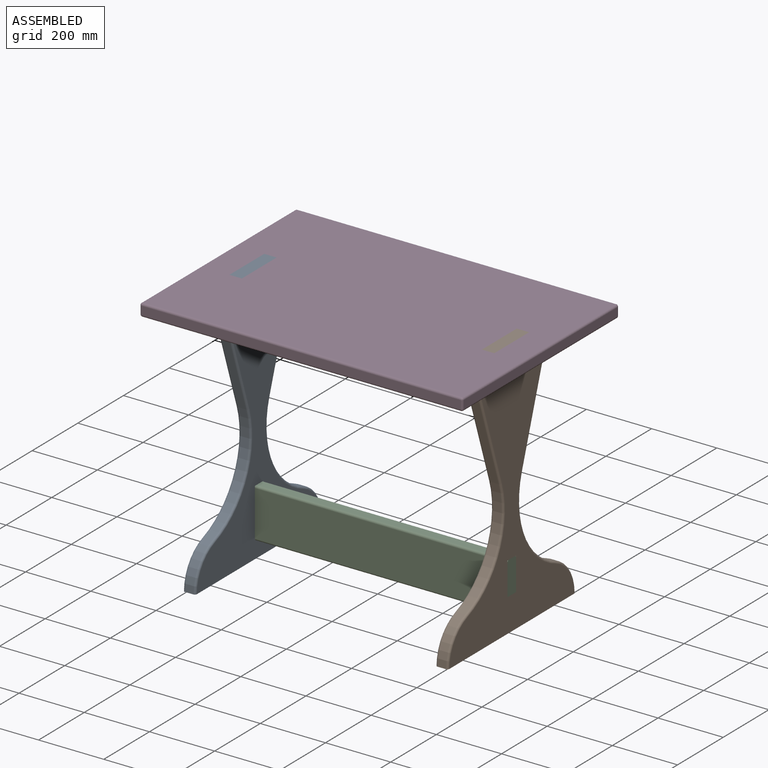
[diagram: assembled view]
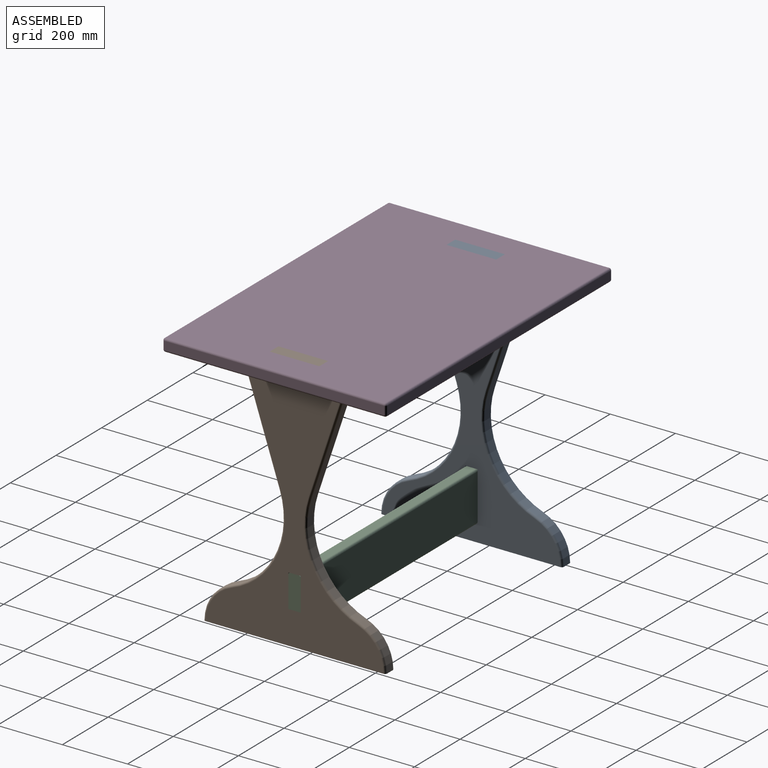
[diagram: assembled view, second angle]
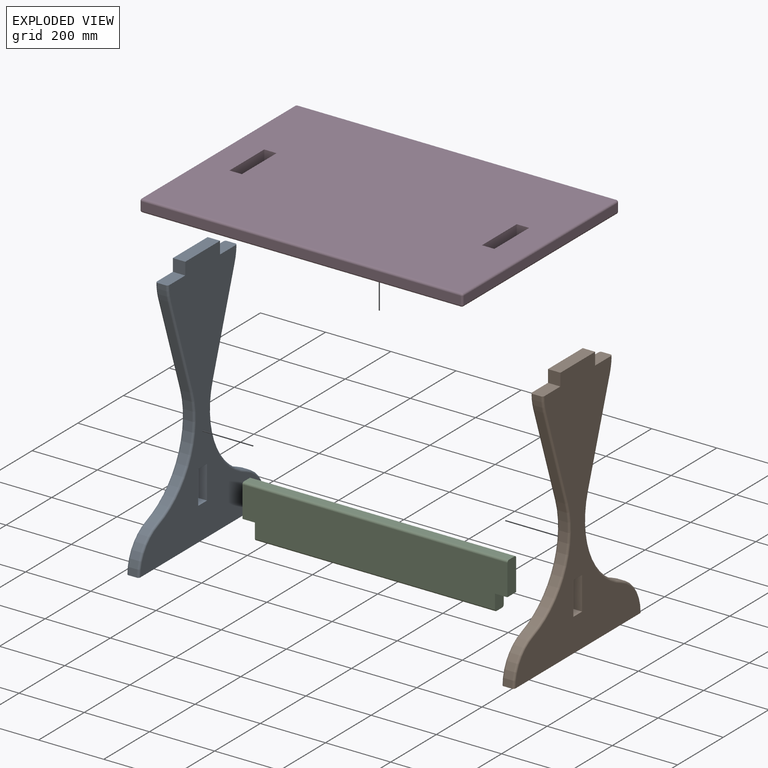
[diagram: exploded view]
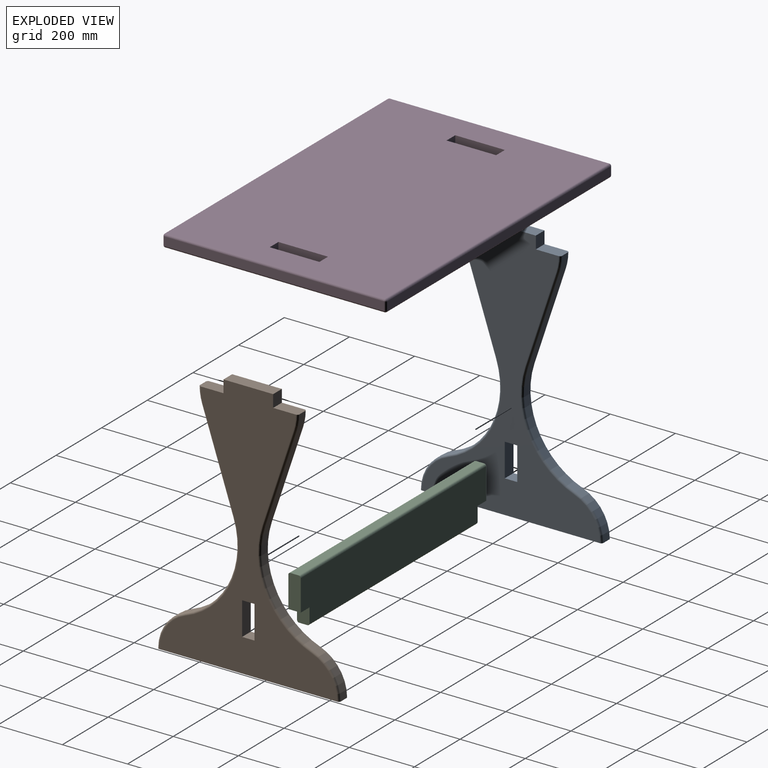
[diagram: exploded view, second angle]
ASSEMBLY  parts=4 mates=9
PART A: 36 faces, bbox 38.1x579.7x800.1 mm
  f0: plane 76.2x38.1mm, normal (0,0,1), area 2885.9mm2, adj f1,f13,f14,f15,f23,f31
  f1: plane 38.1x38.1mm, normal (0,1,0), area 1451.6mm2, adj f0,f2,f14,f15
  f2: plane 152.4x38.1mm, normal (0,0,1), area 5806.4mm2, adj f1,f3,f14,f15
  f3: plane 38.1x38.1mm, normal (0,-1,0), area 1451.6mm2, adj f2,f4,f14,f15
  f4: plane 76.2x38.1mm, normal (0,0,1), area 2885.9mm2, adj f3,f5,f14,f15,f16,f27
  f5: cylinder r=152.4mm len=48.08mm, axis (-1,0,0), area 1242.4mm2, adj f4,f6,f16,f27
  f6: plane 289.24x96.16mm, normal (0,-0.95,-0.32), area 7741.9mm2, adj f5,f7,f17,f26
  f7: cylinder r=243.37mm len=305.39mm, axis (-1,0,0), area 9530.3mm2, adj f6,f8,f18,f25
  f8: cylinder r=127mm len=119.3mm, axis (-1,0,0), area 3938mm2, adj f7,f9,f19,f24
  f9: plane 558.8x38.1mm, normal (0,0,-1), area 21255.7mm2, adj f8,f10,f14,f15,f19,f20,f24,f28
  f10: cylinder r=127mm len=119.3mm, axis (-1,0,0), area 3938mm2, adj f9,f11,f20,f28
  f11: cylinder r=243.37mm len=305.39mm, axis (-1,0,0), area 9530.3mm2, adj f10,f12,f21,f29
  f12: plane 289.24x96.16mm, normal (0,0.95,-0.32), area 7741.9mm2, adj f11,f13,f22,f30
  f13: cylinder r=152.4mm len=48.08mm, axis (-1,0,0), area 1242.4mm2, adj f0,f12,f23,f31
  f14: plane 800.1x546.1mm, normal (1,0,0), area 164738.5mm2, adj f0,f1,f2,f3,f4,f9,f24,f25
  f15: plane 800.1x546.1mm, normal (-1,0,0), area 164738.5mm2, adj f0,f1,f2,f3,f4,f9,f16,f17
  f16: torus R=146.05mm, axis (1,0,0), area 480.5mm2, adj f4,f5,f15,f17
  f17: cylinder r=6.35mm len=291.24mm, axis (0,0.32,-0.95), area 3040.2mm2, adj f6,f15,f16,f18
  f18: torus R=249.72mm, axis (1,0,0), area 3778mm2, adj f7,f15,f17,f19
  f19: torus R=120.65mm, axis (1,0,0), area 1518.4mm2, adj f8,f9,f15,f18
  f20: torus R=120.65mm, axis (1,0,0), area 1518.4mm2, adj f9,f10,f15,f21
  f21: torus R=249.72mm, axis (1,0,0), area 3778mm2, adj f11,f15,f20,f22
  f22: cylinder r=6.35mm len=291.24mm, axis (0,0.32,0.95), area 3040.2mm2, adj f12,f15,f21,f23
  f23: torus R=146.05mm, axis (1,0,0), area 480.5mm2, adj f0,f13,f15,f22
  f24: torus R=120.65mm, axis (1,0,0), area 1518.4mm2, adj f8,f9,f14,f25
  f25: torus R=249.72mm, axis (1,0,0), area 3778mm2, adj f7,f14,f24,f26
  f26: cylinder r=6.35mm len=291.24mm, axis (0,-0.32,0.95), area 3040.2mm2, adj f6,f14,f25,f27
  f27: torus R=146.05mm, axis (1,0,0), area 480.5mm2, adj f4,f5,f14,f26
  f28: torus R=120.65mm, axis (1,0,0), area 1518.4mm2, adj f9,f10,f14,f29
  f29: torus R=249.72mm, axis (1,0,0), area 3778mm2, adj f11,f14,f28,f30
  f30: cylinder r=6.35mm len=291.24mm, axis (0,-0.32,-0.95), area 3040.2mm2, adj f12,f14,f29,f31
  f31: torus R=146.05mm, axis (1,0,0), area 480.5mm2, adj f0,f13,f14,f30
  f32: plane 101.6x38.1mm, normal (0,-1,0), area 3871mm2, adj f14,f15,f33,f35
  f33: plane 38.1x38.1mm, normal (0,0,1), area 1451.6mm2, adj f14,f15,f32,f34
  f34: plane 101.6x38.1mm, normal (0,1,0), area 3871mm2, adj f14,f15,f33,f35
  f35: plane 38.1x38.1mm, normal (0,0,-1), area 1451.6mm2, adj f14,f15,f32,f34
PART B: same geometry as A
PART C: 14 faces, bbox 812.8x38.1x152.4 mm
  f0: plane 101.6x38.1mm, normal (-1,0,0), area 3853.7mm2, adj f1,f7,f8,f9,f11,f13
  f1: plane 38.1x38.1mm, normal (0,0,-1), area 1451.6mm2, adj f0,f2,f8,f9
  f2: plane 50.8x38.1mm, normal (-1,0,0), area 1918.2mm2, adj f1,f3,f8,f9,f10,f12
  f3: plane 736.6x25.4mm, normal (0,0,-1), area 18709.6mm2, adj f2,f4,f10,f12
  f4: plane 50.8x38.1mm, normal (1,0,0), area 1918.2mm2, adj f3,f5,f8,f9,f10,f12
  f5: plane 38.1x38.1mm, normal (0,0,-1), area 1451.6mm2, adj f4,f6,f8,f9
  f6: plane 101.6x38.1mm, normal (1,0,0), area 3853.7mm2, adj f5,f7,f8,f9,f11,f13
  f7: plane 812.8x25.4mm, normal (0,0,1), area 20645.1mm2, adj f0,f6,f11,f13
  f8: plane 812.8x139.7mm, normal (0,-1,0), area 110161.1mm2, adj f0,f1,f2,f4,f5,f6,f12,f13
  f9: plane 812.8x139.7mm, normal (0,1,0), area 110161.1mm2, adj f0,f1,f2,f4,f5,f6,f10,f11
  f10: cylinder r=6.35mm len=736.6mm, axis (1,0,0), area 7347.3mm2, adj f2,f3,f4,f9
  f11: cylinder r=6.35mm len=812.8mm, axis (-1,0,0), area 8107.3mm2, adj f0,f6,f7,f9
  f12: cylinder r=6.35mm len=736.6mm, axis (-1,0,0), area 7347.3mm2, adj f2,f3,f4,f8
  f13: cylinder r=6.35mm len=812.8mm, axis (1,0,0), area 8107.3mm2, adj f0,f6,f7,f8
PART D: 34 faces, bbox 990.6x685.8x38.1 mm
  f0: plane 977.9x25.4mm, normal (0,1,0), area 24838.7mm2, adj f14,f19,f22,f25
  f1: plane 673.1x25.4mm, normal (-1,0,0), area 17096.7mm2, adj f11,f20,f21,f25
  f2: plane 977.9x25.4mm, normal (0,-1,0), area 24838.7mm2, adj f6,f10,f11,f12
  f3: plane 673.1x25.4mm, normal (1,0,0), area 17096.7mm2, adj f6,f9,f13,f14
  f4: plane 977.9x673.1mm, normal (0,0,1), area 646611.6mm2, adj f9,f10,f19,f20,f26,f27,f28,f29
  f5: plane 977.9x673.1mm, normal (0,0,-1), area 646611.6mm2, adj f12,f13,f21,f22,f26,f27,f28,f29
  f6: cylinder r=6.35mm len=25.4mm, axis (0,0,-1), area 253.4mm2, adj f2,f3,f7,f8
  f7: sphere r=6.35mm, area 63.3mm2, adj f6,f9,f10
  f8: sphere r=6.35mm, area 63.3mm2, adj f6,f12,f13
  f9: cylinder r=6.35mm len=673.1mm, axis (0,-1,0), area 6713.9mm2, adj f3,f4,f7,f15
  f10: cylinder r=6.35mm len=977.9mm, axis (-1,0,0), area 9754.1mm2, adj f2,f4,f7,f16
  f11: cylinder r=6.35mm len=25.4mm, axis (0,0,1), area 253.4mm2, adj f1,f2,f16,f17
  f12: cylinder r=6.35mm len=977.9mm, axis (1,0,0), area 9754.1mm2, adj f2,f5,f8,f17
  f13: cylinder r=6.35mm len=673.1mm, axis (0,1,0), area 6713.9mm2, adj f3,f5,f8,f18
  f14: cylinder r=6.35mm len=25.4mm, axis (0,0,1), area 253.4mm2, adj f0,f3,f15,f18
  f15: sphere r=6.35mm, area 63.3mm2, adj f9,f14,f19
  f16: sphere r=6.35mm, area 63.3mm2, adj f10,f11,f20
  f17: sphere r=6.35mm, area 63.3mm2, adj f11,f12,f21
  f18: sphere r=6.35mm, area 63.3mm2, adj f13,f14,f22
  f19: cylinder r=6.35mm len=977.9mm, axis (1,0,0), area 9754.1mm2, adj f0,f4,f15,f23
  f20: cylinder r=6.35mm len=673.1mm, axis (0,1,0), area 6713.9mm2, adj f1,f4,f16,f23
  f21: cylinder r=6.35mm len=673.1mm, axis (0,-1,0), area 6713.9mm2, adj f1,f5,f17,f24
  f22: cylinder r=6.35mm len=977.9mm, axis (-1,0,0), area 9754.1mm2, adj f0,f5,f18,f24
  f23: sphere r=6.35mm, area 63.3mm2, adj f19,f20,f25
  f24: sphere r=6.35mm, area 63.3mm2, adj f21,f22,f25
  f25: cylinder r=6.35mm len=25.4mm, axis (0,0,-1), area 253.4mm2, adj f0,f1,f23,f24
  f26: plane 38.1x38.1mm, normal (0,1,0), area 1451.6mm2, adj f4,f5,f27,f28
  f27: plane 152.4x38.1mm, normal (1,0,0), area 5806.4mm2, adj f4,f5,f26,f29
  f28: plane 152.4x38.1mm, normal (-1,0,0), area 5806.4mm2, adj f4,f5,f26,f29
  f29: plane 38.1x38.1mm, normal (0,-1,0), area 1451.6mm2, adj f4,f5,f27,f28
  f30: plane 38.1x38.1mm, normal (0,1,0), area 1451.6mm2, adj f4,f5,f31,f32
  f31: plane 152.4x38.1mm, normal (1,0,0), area 5806.4mm2, adj f4,f5,f30,f33
  f32: plane 152.4x38.1mm, normal (-1,0,0), area 5806.4mm2, adj f4,f5,f30,f33
  f33: plane 38.1x38.1mm, normal (0,-1,0), area 1451.6mm2, adj f4,f5,f31,f32
PLACE A t=(-382.71,373.24,-258.07)mm
PLACE B t=(391.99,373.24,-258.07)mm
PLACE C t=(-382.71,392.29,-54.87)mm
PLACE D t=(-471.61,30.34,503.93)mm
MATE planar D.f5 <-> A.f4  axis (0,0,-1) through (23.69,373.24,503.93)mm
MATE planar A.f14 <-> C.f2  axis (1,0,0) through (-344.61,373.24,87.09)mm
MATE planar C.f1 <-> A.f33  axis (0,0,-1) through (-363.66,373.24,-156.47)mm
MATE planar C.f5 <-> B.f33  axis (0,0,-1) through (411.04,373.24,-156.47)mm
MATE planar D.f29 <-> B.f1  axis (0,-1,0) through (411.04,449.44,522.98)mm
MATE planar C.f9 <-> B.f32  axis (0,1,0) through (23.69,392.29,-129.61)mm
MATE planar C.f8 <-> A.f34  axis (0,-1,0) through (-382.71,354.19,-108.85)mm
MATE planar D.f27 <-> B.f15  axis (1,0,0) through (391.99,373.24,522.98)mm
MATE planar C.f4 <-> B.f15  axis (1,0,0) through (391.99,373.24,-181.66)mm
